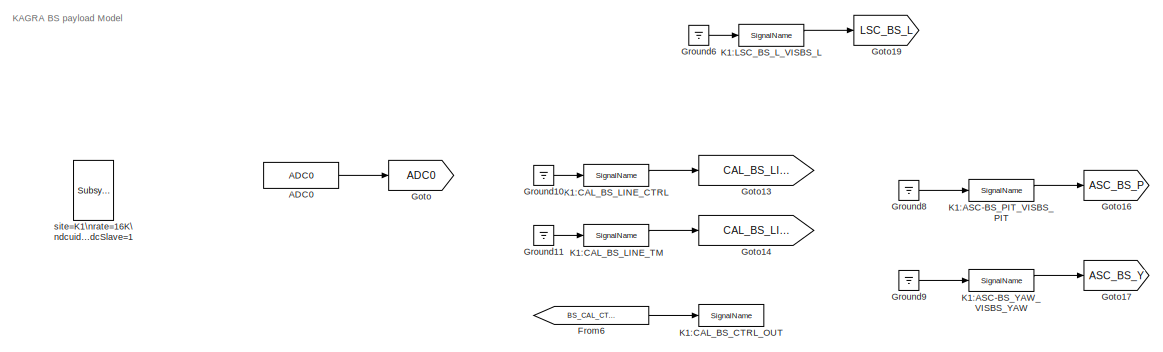
[diagram: root canvas - part 1/6, top left region]
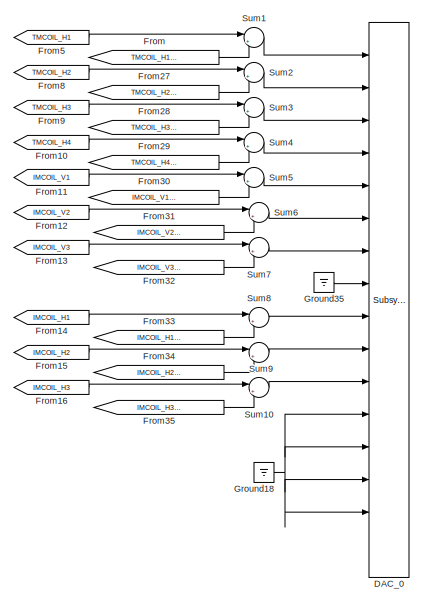
[diagram: root canvas - part 2/6, top right region]
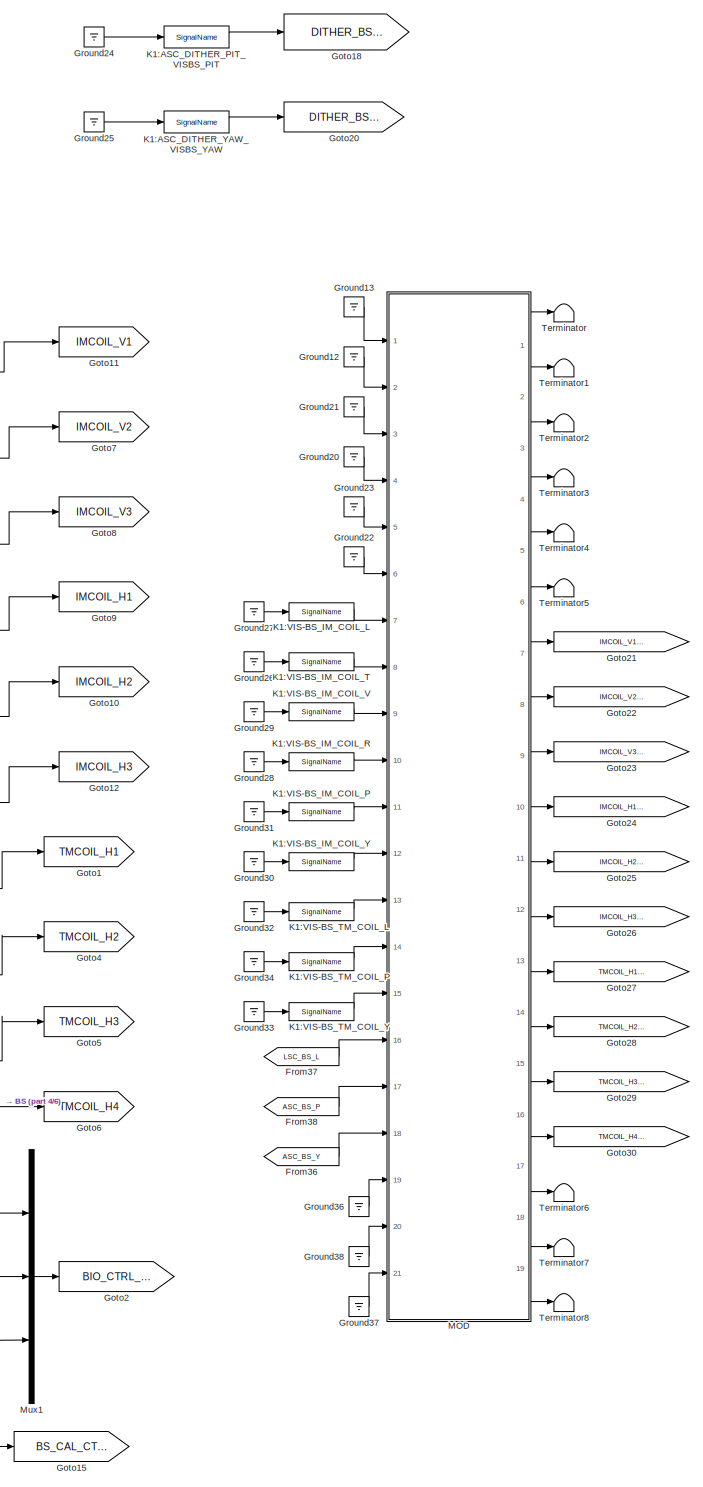
[diagram: root canvas - part 3/6, center side, full height]
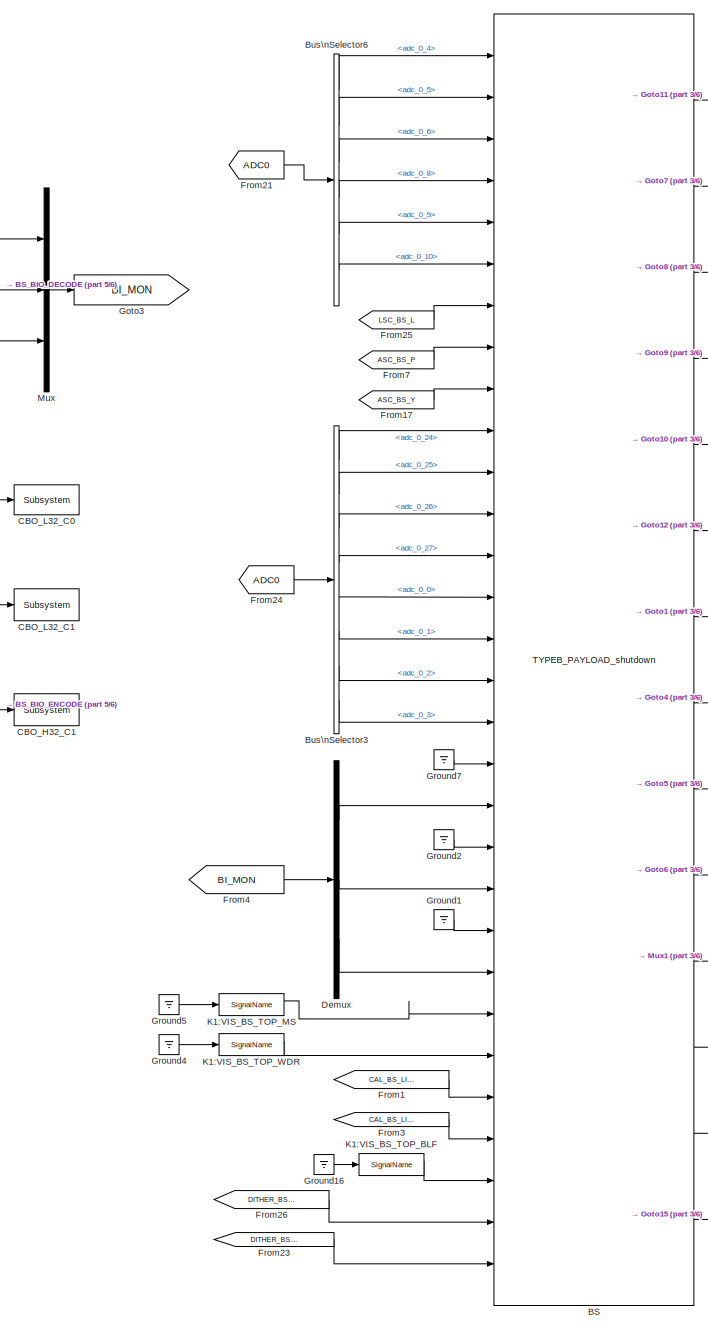
[diagram: root canvas - part 4/6, center side, full height]
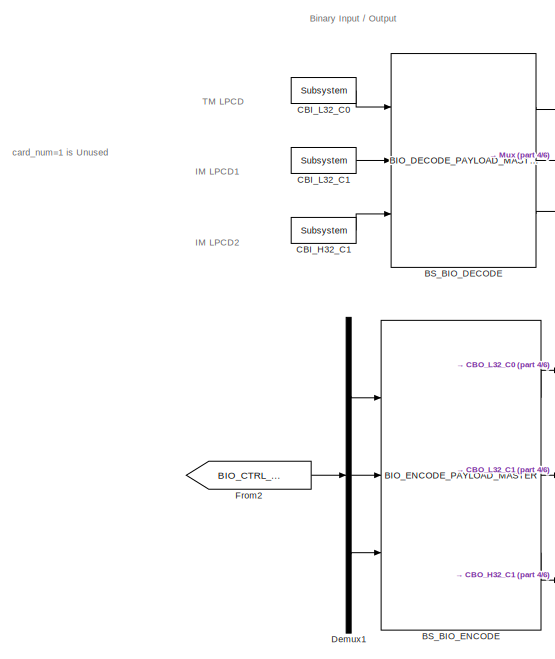
[diagram: root canvas - part 5/6, middle left region]
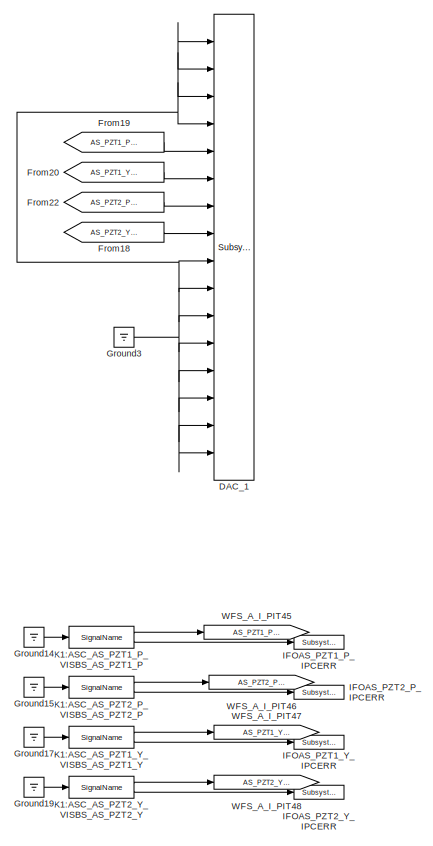
[diagram: root canvas - part 6/6, bottom right region]
MODEL k1visbsp_modal
KIND model
BLOCK [Reference] ADC0  REF=cdsAdcx0/ADC0
  AttributesFormatString = %<Description>\\n%<Tag>
  Description = type-GSC_16AI64SSA\ncard_num=0
  Ports = [0, 1]
  SID = 271
  SourceBlock = cdsAdcx0/ADC0
  SourceType = SubSystem
  Tag = cdsAdc
BLOCK [Reference] BS  REF=TYPEB_MASTER/TYPEB_PAYLOAD_shutdown
  Ports = [30, 14]
  SID = 2400
  SourceBlock = TYPEB_MASTER/TYPEB_PAYLOAD_shutdown
  SourceType = SubSystem
BLOCK [Reference] BS_BIO_DECODE  REF=TYPEB_MASTER/BIO_DECODE_PAYLOAD_MASTER
  Ports = [3, 3]
  SID = 2204
  SourceBlock = TYPEB_MASTER/BIO_DECODE_PAYLOAD_MASTER
  SourceType = SubSystem
BLOCK [Reference] BS_BIO_ENCODE  REF=TYPEB_MASTER/BIO_ENCODE_PAYLOAD_MASTER
  Ports = [3, 3]
  SID = 2205
  SourceBlock = TYPEB_MASTER/BIO_ENCODE_PAYLOAD_MASTER
  SourceType = SubSystem
BLOCK [BusSelector] Bus\nSelector3
  AttributesFormatString = %<Description>
  Description = ADC Selector
  OutputSignals = adc_0_24,adc_0_25,adc_0_26,adc_0_27,adc_0_0,adc_0_1,adc_0_2,adc_0_3
  Ports = [1, 8]
  SID = 275
BLOCK [BusSelector] Bus\nSelector6
  AttributesFormatString = %<Description>
  Description = ADC Selector
  OutputSignals = adc_0_4,adc_0_5,adc_0_6,adc_0_8,adc_0_9,adc_0_10
  Ports = [1, 6]
  SID = 273
BLOCK [Reference] CBI_H32_C1  REF=cdsCDI64/Subsystem
  AttributesFormatString = %<Tag>\\n%<Description>
  Description = card_num=3
  Ports = [0, 1]
  SID = 2125
  SourceBlock = cdsCDI64/Subsystem
  SourceType = SubSystem
  Tag = cdsCDI64
BLOCK [Reference] CBI_L32_C0  REF=cdsCDI64/Subsystem
  AttributesFormatString = %<Tag>\\n%<Description>
  Description = card_num=0
  Ports = [0, 1]
  SID = 2126
  SourceBlock = cdsCDI64/Subsystem
  SourceType = SubSystem
  Tag = cdsCDI64
BLOCK [Reference] CBI_L32_C1  REF=cdsCDI64/Subsystem
  AttributesFormatString = %<Tag>\\n%<Description>
  Description = card_num=2
  Ports = [0, 1]
  SID = 2127
  SourceBlock = cdsCDI64/Subsystem
  SourceType = SubSystem
  Tag = cdsCDI64
BLOCK [Reference] CBO_H32_C1  REF=cdsCDO64/Subsystem
  AttributesFormatString = %<Tag>\\n%<Description>
  Description = card_num=3
  Ports = [1]
  SID = 2130
  SourceBlock = cdsCDO64/Subsystem
  SourceType = SubSystem
  Tag = cdsCDO64
BLOCK [Reference] CBO_L32_C0  REF=cdsCDO64/Subsystem
  AttributesFormatString = %<Tag>\\n%<Description>
  Description = card_num=0
  Ports = [1]
  SID = 2131
  SourceBlock = cdsCDO64/Subsystem
  SourceType = SubSystem
  Tag = cdsCDO64
BLOCK [Reference] CBO_L32_C1  REF=cdsCDO64/Subsystem
  AttributesFormatString = %<Tag>\\n%<Description>
  Description = card_num=2
  Ports = [1]
  SID = 2132
  SourceBlock = cdsCDO64/Subsystem
  SourceType = SubSystem
  Tag = cdsCDO64
BLOCK [Reference] DAC_0  REF=dac/Subsystem  (lib defined in slx_40ef132df75b, slx_b7657ccccc5b, +4 more)
  AttributesFormatString = %<Description>
  Description = type=GSC_16AO16,\ncard_num=0
  Ports = [16]
  SID = 350
  SourceBlock = dac/Subsystem
  SourceType = SubSystem
BLOCK [Reference] DAC_1  REF=dac/Subsystem  (lib defined in slx_40ef132df75b, slx_b7657ccccc5b, +4 more)
  AttributesFormatString = %<Description>
  Description = type=GSC_16AO16,\ncard_num=1
  Ports = [16]
  SID = 536
  SourceBlock = dac/Subsystem
  SourceType = SubSystem
BLOCK [Demux] Demux
  DisplayOption = bar
  Outputs = 3
  Ports = [1, 3]
  SID = 2148
BLOCK [Demux] Demux1
  DisplayOption = bar
  Outputs = 3
  Ports = [1, 3]
  SID = 2135
BLOCK [From] From
  GotoTag = TMCOIL_H1_modal
  SID = 2369
BLOCK [From] From1
  GotoTag = CAL_BS_LINE_CTRL
  SID = 2173
BLOCK [From] From10
  GotoTag = TMCOIL_H4
  SID = 351
BLOCK [From] From11
  GotoTag = IMCOIL_V1
  SID = 352
BLOCK [From] From12
  GotoTag = IMCOIL_V2
  SID = 353
BLOCK [From] From13
  GotoTag = IMCOIL_V3
  SID = 354
BLOCK [From] From14
  GotoTag = IMCOIL_H1
  SID = 355
BLOCK [From] From15
  GotoTag = IMCOIL_H2
  SID = 356
BLOCK [From] From16
  GotoTag = IMCOIL_H3
  SID = 357
BLOCK [From] From17
  GotoTag = ASC_BS_Y
  SID = 2225
BLOCK [From] From18
  GotoTag = AS_PZT2_Y_DC
  SID = 2249
BLOCK [From] From19
  GotoTag = AS_PZT1_P_DC
  SID = 2250
BLOCK [From] From2
  GotoTag = BIO_CTRL_OUT
  SID = 2136
BLOCK [From] From20
  GotoTag = AS_PZT1_Y_DC
  SID = 2251
BLOCK [From] From21
  GotoTag = ADC0
  SID = 1851
BLOCK [From] From22
  GotoTag = AS_PZT2_P_DC
  SID = 2252
BLOCK [From] From23
  GotoTag = DITHER_BS_Y
  SID = 2270
BLOCK [From] From24
  GotoTag = ADC0
  SID = 1853
BLOCK [From] From25
  GotoTag = LSC_BS_L
  SID = 1862
BLOCK [From] From26
  GotoTag = DITHER_BS_P
  SID = 2271
BLOCK [From] From27
  GotoTag = TMCOIL_H2_modal
  SID = 2374
BLOCK [From] From28
  GotoTag = TMCOIL_H3_modal
  SID = 2376
BLOCK [From] From29
  GotoTag = TMCOIL_H4_modal
  SID = 2378
BLOCK [From] From3
  GotoTag = CAL_BS_LINE_TM
  SID = 2174
BLOCK [From] From30
  GotoTag = IMCOIL_V1_modal
  SID = 2380
BLOCK [From] From31
  GotoTag = IMCOIL_V2_modal
  SID = 2383
BLOCK [From] From32
  GotoTag = IMCOIL_V3_modal
  SID = 2385
BLOCK [From] From33
  GotoTag = IMCOIL_H1_modal
  SID = 2387
BLOCK [From] From34
  GotoTag = IMCOIL_H2_modal
  SID = 2389
BLOCK [From] From35
  GotoTag = IMCOIL_H3_modal
  SID = 2391
BLOCK [From] From36
  GotoTag = ASC_BS_Y
  SID = 2393
BLOCK [From] From37
  GotoTag = LSC_BS_L
  SID = 2394
BLOCK [From] From38
  GotoTag = ASC_BS_P
  SID = 2395
BLOCK [From] From4
  GotoTag = BI_MON
  SID = 2149
BLOCK [From] From5
  GotoTag = TMCOIL_H1
  SID = 359
BLOCK [From] From6
  GotoTag = BS_CAL_CTRL_OUT
  SID = 2178
BLOCK [From] From7
  GotoTag = ASC_BS_P
  SID = 2224
BLOCK [From] From8
  GotoTag = TMCOIL_H2
  SID = 360
BLOCK [From] From9
  GotoTag = TMCOIL_H3
  SID = 361
BLOCK [Goto] Goto
  GotoTag = ADC0
  SID = 272
BLOCK [Goto] Goto1
  GotoTag = TMCOIL_H1
  SID = 364
BLOCK [Goto] Goto10
  GotoTag = IMCOIL_H2
  SID = 368
BLOCK [Goto] Goto11
  GotoTag = IMCOIL_V1
  SID = 369
BLOCK [Goto] Goto12
  GotoTag = IMCOIL_H3
  SID = 370
BLOCK [Goto] Goto13
  GotoTag = CAL_BS_LINE_CTRL
  SID = 2167
BLOCK [Goto] Goto14
  GotoTag = CAL_BS_LINE_TM
  SID = 2170
BLOCK [Goto] Goto15
  GotoTag = BS_CAL_CTRL_OUT
  SID = 2177
BLOCK [Goto] Goto16
  GotoTag = ASC_BS_P
  SID = 2216
BLOCK [Goto] Goto17
  GotoTag = ASC_BS_Y
  SID = 2219
BLOCK [Goto] Goto18
  GotoTag = DITHER_BS_P
  SID = 2259
BLOCK [Goto] Goto19
  GotoTag = LSC_BS_L
  SID = 1861
BLOCK [Goto] Goto2
  GotoTag = BIO_CTRL_OUT
  SID = 2146
BLOCK [Goto] Goto20
  GotoTag = DITHER_BS_Y
  SID = 2260
BLOCK [Goto] Goto21
  GotoTag = IMCOIL_V1_modal
  SID = 2352
BLOCK [Goto] Goto22
  GotoTag = IMCOIL_V2_modal
  SID = 2354
BLOCK [Goto] Goto23
  GotoTag = IMCOIL_V3_modal
  SID = 2355
BLOCK [Goto] Goto24
  GotoTag = IMCOIL_H1_modal
  SID = 2356
BLOCK [Goto] Goto25
  GotoTag = IMCOIL_H2_modal
  SID = 2357
BLOCK [Goto] Goto26
  GotoTag = IMCOIL_H3_modal
  SID = 2358
BLOCK [Goto] Goto27
  GotoTag = TMCOIL_H1_modal
  SID = 2359
BLOCK [Goto] Goto28
  GotoTag = TMCOIL_H2_modal
  SID = 2360
BLOCK [Goto] Goto29
  GotoTag = TMCOIL_H3_modal
  SID = 2361
BLOCK [Goto] Goto3
  GotoTag = BI_MON
  SID = 2137
BLOCK [Goto] Goto30
  GotoTag = TMCOIL_H4_modal
  SID = 2362
BLOCK [Goto] Goto4
  GotoTag = TMCOIL_H2
  SID = 365
BLOCK [Goto] Goto5
  GotoTag = TMCOIL_H3
  SID = 366
BLOCK [Goto] Goto6
  GotoTag = TMCOIL_H4
  SID = 367
BLOCK [Goto] Goto7
  GotoTag = IMCOIL_V2
  SID = 371
BLOCK [Goto] Goto8
  GotoTag = IMCOIL_V3
  SID = 372
BLOCK [Goto] Goto9
  GotoTag = IMCOIL_H1
  SID = 373
BLOCK [Ground] Ground1
  SID = 2152
BLOCK [Ground] Ground10
  SID = 2168
BLOCK [Ground] Ground11
  SID = 2171
BLOCK [Ground] Ground12
  SID = 2318
BLOCK [Ground] Ground13
  SID = 2319
BLOCK [Ground] Ground14
  SID = 2233
BLOCK [Ground] Ground15
  SID = 2234
BLOCK [Ground] Ground16
  SID = 2207
BLOCK [Ground] Ground17
  SID = 2235
BLOCK [Ground] Ground18
  SID = 362
BLOCK [Ground] Ground19
  SID = 2236
BLOCK [Ground] Ground2
  SID = 2153
BLOCK [Ground] Ground20
  SID = 2321
BLOCK [Ground] Ground21
  SID = 2322
BLOCK [Ground] Ground22
  SID = 2323
BLOCK [Ground] Ground23
  SID = 2324
BLOCK [Ground] Ground24
  SID = 2266
BLOCK [Ground] Ground25
  SID = 2267
BLOCK [Ground] Ground26
  SID = 2334
BLOCK [Ground] Ground27
  SID = 2335
BLOCK [Ground] Ground28
  SID = 2336
BLOCK [Ground] Ground29
  SID = 2337
BLOCK [Ground] Ground3
  SID = 537
BLOCK [Ground] Ground30
  SID = 2338
BLOCK [Ground] Ground31
  SID = 2339
BLOCK [Ground] Ground32
  SID = 2340
BLOCK [Ground] Ground33
  SID = 2341
BLOCK [Ground] Ground34
  SID = 2342
BLOCK [Ground] Ground35
  SID = 2350
BLOCK [Ground] Ground36
  SID = 2396
BLOCK [Ground] Ground37
  SID = 2397
BLOCK [Ground] Ground38
  SID = 2398
BLOCK [Ground] Ground4
  SID = 2160
BLOCK [Ground] Ground5
  SID = 2162
BLOCK [Ground] Ground6
  SID = 1860
BLOCK [Ground] Ground7
  SID = 2151
BLOCK [Ground] Ground8
  SID = 2217
BLOCK [Ground] Ground9
  SID = 2220
BLOCK [Reference] IFOAS_PZT1_P_IPCERR  REF=cdsEpicsOut/Subsystem
  AttributesFormatString = %<Tag>
  Description = Purpose:                                          \nOutput a FE signal to an EPICS channel.           \n                                                  \nOperation:                                        \nTakes input value and passes it to EPICS record.  \n                                                  \nUsage:                                            \nName the part with the desired EPICS...<+14ch>  <repeated x4 — deduplicated; at blocks: IFOAS_PZT1_P_IPCERR, IFOAS_PZT1_Y_IPCERR, IFOAS_PZT2_P_IPCERR, IFOAS_PZT2_Y_IPCERR>
  Ports = [1, 1]
  SID = 2237
  SourceBlock = cdsEpicsOut/Subsystem
  SourceType = SubSystem
  Tag = cdsEpicsOutput
BLOCK [Reference] IFOAS_PZT1_Y_IPCERR  REF=cdsEpicsOut/Subsystem
  AttributesFormatString = %<Tag>
  Ports = [1, 1]
  SID = 2238
  SourceBlock = cdsEpicsOut/Subsystem
  SourceType = SubSystem
  Tag = cdsEpicsOutput
BLOCK [Reference] IFOAS_PZT2_P_IPCERR  REF=cdsEpicsOut/Subsystem
  AttributesFormatString = %<Tag>
  Ports = [1, 1]
  SID = 2239
  SourceBlock = cdsEpicsOut/Subsystem
  SourceType = SubSystem
  Tag = cdsEpicsOutput
BLOCK [Reference] IFOAS_PZT2_Y_IPCERR  REF=cdsEpicsOut/Subsystem
  AttributesFormatString = %<Tag>
  Ports = [1, 1]
  SID = 2240
  SourceBlock = cdsEpicsOut/Subsystem
  SourceType = SubSystem
  Tag = cdsEpicsOutput
BLOCK [Reference] K1:ASC-BS_PIT_VISBS_PIT  REF=cdsIPCx/SignalName
  AttributesFormatString = %<Tag>
  Description = Inter-Process Communication via PCI Express network.
  Ports = [1, 2]
  SID = 2230
  SourceBlock = cdsIPCx/SignalName
  SourceType = SubSystem
  Tag = cdsIPCx_PCIE
BLOCK [Reference] K1:ASC-BS_YAW_VISBS_YAW  REF=cdsIPCx/SignalName
  AttributesFormatString = %<Tag>
  Description = Inter-Process Communication via PCI Express network.
  Ports = [1, 2]
  SID = 2232
  SourceBlock = cdsIPCx/SignalName
  SourceType = SubSystem
  Tag = cdsIPCx_PCIE
BLOCK [Reference] K1:ASC_AS_PZT1_P_VISBS_AS_PZT1_P  REF=cdsIPCx/SignalName
  AttributesFormatString = %<Tag>
  Description = Inter-Process Communication via PCI Express network.
  Ports = [1, 2]
  SID = 2241
  SourceBlock = cdsIPCx/SignalName
  SourceType = SubSystem
  Tag = cdsIPCx_PCIE
BLOCK [Reference] K1:ASC_AS_PZT1_Y_VISBS_AS_PZT1_Y  REF=cdsIPCx/SignalName
  AttributesFormatString = %<Tag>
  Description = Inter-Process Communication via PCI Express network.
  Ports = [1, 2]
  SID = 2242
  SourceBlock = cdsIPCx/SignalName
  SourceType = SubSystem
  Tag = cdsIPCx_PCIE
BLOCK [Reference] K1:ASC_AS_PZT2_P_VISBS_AS_PZT2_P  REF=cdsIPCx/SignalName
  AttributesFormatString = %<Tag>
  Description = Inter-Process Communication via PCI Express network.
  Ports = [1, 2]
  SID = 2243
  SourceBlock = cdsIPCx/SignalName
  SourceType = SubSystem
  Tag = cdsIPCx_PCIE
BLOCK [Reference] K1:ASC_AS_PZT2_Y_VISBS_AS_PZT2_Y  REF=cdsIPCx/SignalName
  AttributesFormatString = %<Tag>
  Description = Inter-Process Communication via PCI Express network.
  Ports = [1, 2]
  SID = 2244
  SourceBlock = cdsIPCx/SignalName
  SourceType = SubSystem
  Tag = cdsIPCx_PCIE
BLOCK [Reference] K1:ASC_DITHER_PIT_VISBS_PIT  REF=cdsIPCx/SignalName
  AttributesFormatString = %<Tag>
  Description = Inter-Process Communication via PCI Express network.
  Ports = [1, 2]
  SID = 2226
  SourceBlock = cdsIPCx/SignalName
  SourceType = SubSystem
  Tag = cdsIPCx_PCIE
BLOCK [Reference] K1:ASC_DITHER_YAW_VISBS_YAW  REF=cdsIPCx/SignalName
  AttributesFormatString = %<Tag>
  Description = Inter-Process Communication via PCI Express network.
  Ports = [1, 2]
  SID = 2227
  SourceBlock = cdsIPCx/SignalName
  SourceType = SubSystem
  Tag = cdsIPCx_PCIE
BLOCK [Reference] K1:CAL_BS_CTRL_OUT  REF=cdsIPCx/SignalName
  AttributesFormatString = %<Tag>
  Description = Inter-Process Communication via PCI Express network.
  Ports = [1, 2]
  SID = 2176
  SourceBlock = cdsIPCx/SignalName
  SourceType = SubSystem
  Tag = cdsIPCx_PCIE
BLOCK [Reference] K1:CAL_BS_LINE_CTRL  REF=cdsIPCx/SignalName
  AttributesFormatString = %<Tag>
  Description = Inter-Process Communication via PCI Express network.
  Ports = [1, 2]
  SID = 2169
  SourceBlock = cdsIPCx/SignalName
  SourceType = SubSystem
  Tag = cdsIPCx_PCIE
BLOCK [Reference] K1:CAL_BS_LINE_TM  REF=cdsIPCx/SignalName
  AttributesFormatString = %<Tag>
  Description = Inter-Process Communication via PCI Express network.
  Ports = [1, 2]
  SID = 2172
  SourceBlock = cdsIPCx/SignalName
  SourceType = SubSystem
  Tag = cdsIPCx_PCIE
BLOCK [Reference] K1:LSC_BS_L_VISBS_L  REF=cdsIPCx/SignalName
  AttributesFormatString = %<Tag>
  Description = Inter-Process Communication via PCI Express network.
  Ports = [1, 2]
  SID = 1857
  SourceBlock = cdsIPCx/SignalName
  SourceType = SubSystem
  Tag = cdsIPCx_PCIE
BLOCK [Reference] K1:VIS-BS_IM_COIL_L  REF=cdsIPCx/SignalName
  AttributesFormatString = %<Tag>
  Description = Inter-Process Communication via Shared memory.
  Ports = [1, 2]
  SID = 2328
  SourceBlock = cdsIPCx/SignalName
  SourceType = SubSystem
  Tag = cdsIPCx_SHMEM
BLOCK [Reference] K1:VIS-BS_IM_COIL_P  REF=cdsIPCx/SignalName
  AttributesFormatString = %<Tag>
  Description = Inter-Process Communication via Shared memory.
  Ports = [1, 2]
  SID = 2326
  SourceBlock = cdsIPCx/SignalName
  SourceType = SubSystem
  Tag = cdsIPCx_SHMEM
BLOCK [Reference] K1:VIS-BS_IM_COIL_R  REF=cdsIPCx/SignalName
  AttributesFormatString = %<Tag>
  Description = Inter-Process Communication via Shared memory.
  Ports = [1, 2]
  SID = 2325
  SourceBlock = cdsIPCx/SignalName
  SourceType = SubSystem
  Tag = cdsIPCx_SHMEM
BLOCK [Reference] K1:VIS-BS_IM_COIL_T  REF=cdsIPCx/SignalName
  AttributesFormatString = %<Tag>
  Description = Inter-Process Communication via Shared memory.
  Ports = [1, 2]
  SID = 2329
  SourceBlock = cdsIPCx/SignalName
  SourceType = SubSystem
  Tag = cdsIPCx_SHMEM
BLOCK [Reference] K1:VIS-BS_IM_COIL_V  REF=cdsIPCx/SignalName
  AttributesFormatString = %<Tag>
  Description = Inter-Process Communication via Shared memory.
  Ports = [1, 2]
  SID = 2330
  SourceBlock = cdsIPCx/SignalName
  SourceType = SubSystem
  Tag = cdsIPCx_SHMEM
BLOCK [Reference] K1:VIS-BS_IM_COIL_Y  REF=cdsIPCx/SignalName
  AttributesFormatString = %<Tag>
  Description = Inter-Process Communication via Shared memory.
  Ports = [1, 2]
  SID = 2327
  SourceBlock = cdsIPCx/SignalName
  SourceType = SubSystem
  Tag = cdsIPCx_SHMEM
BLOCK [Reference] K1:VIS-BS_TM_COIL_L  REF=cdsIPCx/SignalName
  AttributesFormatString = %<Tag>
  Description = Inter-Process Communication via Shared memory.
  Ports = [1, 2]
  SID = 2331
  SourceBlock = cdsIPCx/SignalName
  SourceType = SubSystem
  Tag = cdsIPCx_SHMEM
BLOCK [Reference] K1:VIS-BS_TM_COIL_P  REF=cdsIPCx/SignalName
  AttributesFormatString = %<Tag>
  Description = Inter-Process Communication via Shared memory.
  Ports = [1, 2]
  SID = 2332
  SourceBlock = cdsIPCx/SignalName
  SourceType = SubSystem
  Tag = cdsIPCx_SHMEM
BLOCK [Reference] K1:VIS-BS_TM_COIL_Y  REF=cdsIPCx/SignalName
  AttributesFormatString = %<Tag>
  Description = Inter-Process Communication via Shared memory.
  Ports = [1, 2]
  SID = 2333
  SourceBlock = cdsIPCx/SignalName
  SourceType = SubSystem
  Tag = cdsIPCx_SHMEM
BLOCK [Reference] K1:VIS_BS_TOP_BLF  REF=cdsIPCx/SignalName
  AttributesFormatString = %<Tag>
  Description = Inter-Process Communication via Shared memory.
  Ports = [1, 2]
  SID = 2208
  SourceBlock = cdsIPCx/SignalName
  SourceType = SubSystem
  Tag = cdsIPCx_SHMEM
BLOCK [Reference] K1:VIS_BS_TOP_MS  REF=cdsIPCx/SignalName
  AttributesFormatString = %<Tag>
  Description = Inter-Process Communication via Shared memory.
  Ports = [1, 2]
  SID = 2163
  SourceBlock = cdsIPCx/SignalName
  SourceType = SubSystem
  Tag = cdsIPCx_SHMEM
BLOCK [Reference] K1:VIS_BS_TOP_WDR  REF=cdsIPCx/SignalName
  AttributesFormatString = %<Tag>
  Description = Inter-Process Communication via Shared memory.
  Ports = [1, 2]
  SID = 2161
  SourceBlock = cdsIPCx/SignalName
  SourceType = SubSystem
  Tag = cdsIPCx_SHMEM
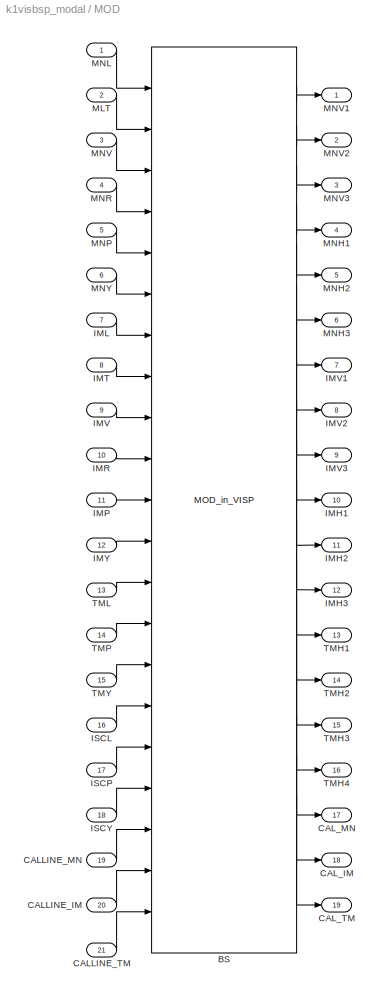
BLOCK [SubSystem] MOD
  Ports = [21, 19]
  RequestExecContextInheritance = off
  SID = 2276
  Tag = top_names
  Variant = off
BLOCK [Reference] MOD/BS  REF=VIS_LIB/MODAL/MOD_in_VISP
  Ports = [21, 22]
  SID = 2298
  SourceBlock = VIS_LIB/MODAL/MOD_in_VISP
  SourceType = SubSystem
  Tag = top_names
BLOCK [Inport] MOD/CALLINE_IM
  IconDisplay = Port number
  Port = 20
  SID = 2296
BLOCK [Inport] MOD/CALLINE_MN
  IconDisplay = Port number
  Port = 19
  SID = 2295
BLOCK [Inport] MOD/CALLINE_TM
  IconDisplay = Port number
  Port = 21
  SID = 2297
BLOCK [Outport] MOD/CAL_IM
  IconDisplay = Port number
  Port = 18
  SID = 2316
BLOCK [Outport] MOD/CAL_MN
  IconDisplay = Port number
  Port = 17
  SID = 2315
BLOCK [Outport] MOD/CAL_TM
  IconDisplay = Port number
  Port = 19
  SID = 2317
BLOCK [Outport] MOD/IMH1
  IconDisplay = Port number
  Port = 10
  SID = 2308
BLOCK [Outport] MOD/IMH2
  IconDisplay = Port number
  Port = 11
  SID = 2309
BLOCK [Outport] MOD/IMH3
  IconDisplay = Port number
  Port = 12
  SID = 2310
BLOCK [Inport] MOD/IML
  IconDisplay = Port number
  Port = 7
  SID = 2283
BLOCK [Inport] MOD/IMP
  IconDisplay = Port number
  Port = 11
  SID = 2287
BLOCK [Inport] MOD/IMR
  IconDisplay = Port number
  Port = 10
  SID = 2286
BLOCK [Inport] MOD/IMT
  IconDisplay = Port number
  Port = 8
  SID = 2284
BLOCK [Inport] MOD/IMV
  IconDisplay = Port number
  Port = 9
  SID = 2285
BLOCK [Outport] MOD/IMV1
  IconDisplay = Port number
  Port = 7
  SID = 2305
BLOCK [Outport] MOD/IMV2
  IconDisplay = Port number
  Port = 8
  SID = 2306
BLOCK [Outport] MOD/IMV3
  IconDisplay = Port number
  Port = 9
  SID = 2307
BLOCK [Inport] MOD/IMY
  IconDisplay = Port number
  Port = 12
  SID = 2288
BLOCK [Inport] MOD/ISCL
  IconDisplay = Port number
  Port = 16
  SID = 2292
BLOCK [Inport] MOD/ISCP
  IconDisplay = Port number
  Port = 17
  SID = 2293
BLOCK [Inport] MOD/ISCY
  IconDisplay = Port number
  Port = 18
  SID = 2294
BLOCK [Inport] MOD/MLT
  IconDisplay = Port number
  Port = 2
  SID = 2278
BLOCK [Outport] MOD/MNH1
  IconDisplay = Port number
  Port = 4
  SID = 2302
BLOCK [Outport] MOD/MNH2
  IconDisplay = Port number
  Port = 5
  SID = 2303
BLOCK [Outport] MOD/MNH3
  IconDisplay = Port number
  Port = 6
  SID = 2304
BLOCK [Inport] MOD/MNL
  IconDisplay = Port number
  SID = 2277
BLOCK [Inport] MOD/MNP
  IconDisplay = Port number
  Port = 5
  SID = 2281
BLOCK [Inport] MOD/MNR
  IconDisplay = Port number
  Port = 4
  SID = 2280
BLOCK [Inport] MOD/MNV
  IconDisplay = Port number
  Port = 3
  SID = 2279
BLOCK [Outport] MOD/MNV1
  IconDisplay = Port number
  SID = 2299
BLOCK [Outport] MOD/MNV2
  IconDisplay = Port number
  Port = 2
  SID = 2300
BLOCK [Outport] MOD/MNV3
  IconDisplay = Port number
  Port = 3
  SID = 2301
BLOCK [Inport] MOD/MNY
  IconDisplay = Port number
  Port = 6
  SID = 2282
BLOCK [Outport] MOD/TMH1
  IconDisplay = Port number
  Port = 13
  SID = 2311
BLOCK [Outport] MOD/TMH2
  IconDisplay = Port number
  Port = 14
  SID = 2312
BLOCK [Outport] MOD/TMH3
  IconDisplay = Port number
  Port = 15
  SID = 2313
BLOCK [Outport] MOD/TMH4
  IconDisplay = Port number
  Port = 16
  SID = 2314
BLOCK [Inport] MOD/TML
  IconDisplay = Port number
  Port = 13
  SID = 2289
BLOCK [Inport] MOD/TMP
  IconDisplay = Port number
  Port = 14
  SID = 2290
BLOCK [Inport] MOD/TMY
  IconDisplay = Port number
  Port = 15
  SID = 2291
BLOCK [Mux] Mux
  DisplayOption = bar
  Inputs = 3
  Ports = [3, 1]
  SID = 2138
BLOCK [Mux] Mux1
  DisplayOption = bar
  Inputs = 3
  Ports = [3, 1]
  SID = 2147
BLOCK [Sum] Sum1
  IconShape = round
  InputSameDT = off
  Inputs = |++
  OutDataTypeStr = Inherit: Inherit via internal rule
  Ports = [2, 1]
  SID = 2371
  SaturateOnIntegerOverflow = off
BLOCK [Sum] Sum10
  IconShape = round
  InputSameDT = off
  Inputs = |++
  OutDataTypeStr = Inherit: Inherit via internal rule
  Ports = [2, 1]
  SID = 2392
  SaturateOnIntegerOverflow = off
BLOCK [Sum] Sum2
  IconShape = round
  InputSameDT = off
  Inputs = |++
  OutDataTypeStr = Inherit: Inherit via internal rule
  Ports = [2, 1]
  SID = 2375
  SaturateOnIntegerOverflow = off
BLOCK [Sum] Sum3
  IconShape = round
  InputSameDT = off
  Inputs = |++
  OutDataTypeStr = Inherit: Inherit via internal rule
  Ports = [2, 1]
  SID = 2377
  SaturateOnIntegerOverflow = off
BLOCK [Sum] Sum4
  IconShape = round
  InputSameDT = off
  Inputs = |++
  OutDataTypeStr = Inherit: Inherit via internal rule
  Ports = [2, 1]
  SID = 2379
  SaturateOnIntegerOverflow = off
BLOCK [Sum] Sum5
  IconShape = round
  InputSameDT = off
  Inputs = |++
  OutDataTypeStr = Inherit: Inherit via internal rule
  Ports = [2, 1]
  SID = 2381
  SaturateOnIntegerOverflow = off
BLOCK [Sum] Sum6
  IconShape = round
  InputSameDT = off
  Inputs = |++
  OutDataTypeStr = Inherit: Inherit via internal rule
  Ports = [2, 1]
  SID = 2384
  SaturateOnIntegerOverflow = off
BLOCK [Sum] Sum7
  IconShape = round
  InputSameDT = off
  Inputs = |++
  OutDataTypeStr = Inherit: Inherit via internal rule
  Ports = [2, 1]
  SID = 2386
  SaturateOnIntegerOverflow = off
BLOCK [Sum] Sum8
  IconShape = round
  InputSameDT = off
  Inputs = |++
  OutDataTypeStr = Inherit: Inherit via internal rule
  Ports = [2, 1]
  SID = 2388
  SaturateOnIntegerOverflow = off
BLOCK [Sum] Sum9
  IconShape = round
  InputSameDT = off
  Inputs = |++
  OutDataTypeStr = Inherit: Inherit via internal rule
  Ports = [2, 1]
  SID = 2390
  SaturateOnIntegerOverflow = off
BLOCK [Terminator] Terminator
  SID = 2343
BLOCK [Terminator] Terminator1
  SID = 2344
BLOCK [Terminator] Terminator2
  SID = 2345
BLOCK [Terminator] Terminator3
  SID = 2346
BLOCK [Terminator] Terminator4
  SID = 2347
BLOCK [Terminator] Terminator5
  SID = 2348
BLOCK [Terminator] Terminator6
  SID = 2363
BLOCK [Terminator] Terminator7
  SID = 2364
BLOCK [Terminator] Terminator8
  SID = 2365
BLOCK [Goto] WFS_A_I_PIT45
  GotoTag = AS_PZT1_P_DC
  SID = 2245
BLOCK [Goto] WFS_A_I_PIT46
  GotoTag = AS_PZT2_P_DC
  SID = 2246
BLOCK [Goto] WFS_A_I_PIT47
  GotoTag = AS_PZT1_Y_DC
  SID = 2247
BLOCK [Goto] WFS_A_I_PIT48
  GotoTag = AS_PZT2_Y_DC
  SID = 2248
BLOCK [Reference] site=K1\nrate=16K\ndcuid=92\nhost=k1bs\nspecific_cpu=5\nadcSlave=1  REF=cdsParameters/Subsystem
  AttributesFormatString = %<Tag>
  Description = Purpose:                                                                                                                                                                                                                                \nProvide system parameters to the FE code generator to properly configure the generated EPICS names, rep rate of the FE controller, and the Data Acquisition node ID fo...<+2934ch>
  Ports = []
  SID = 422
  SourceBlock = cdsParameters/Subsystem
  SourceType = SubSystem
  Tag = cdsParameters
ANNOTATION (root): \n \n TM LPCD
ANNOTATION (root): \n \n card_num=1 is Unused
ANNOTATION (root): \n \n IM LPCD1
ANNOTATION (root): \n \n IM LPCD2
ANNOTATION (root): \n \n KAGRA BS payload Model
ANNOTATION (root): Binary Input / Output
LINE ADC0:1 -> Goto:1
LINE BS:1 -> Goto11:1
LINE BS:10 -> Goto6:1
LINE BS:11 -> Mux1:1
LINE BS:12 -> Mux1:2
LINE BS:13 -> Mux1:3
LINE BS:14 -> Goto15:1
LINE BS:2 -> Goto7:1
LINE BS:3 -> Goto8:1
LINE BS:4 -> Goto9:1
LINE BS:5 -> Goto10:1
LINE BS:6 -> Goto12:1
LINE BS:7 -> Goto1:1
LINE BS:8 -> Goto4:1
LINE BS:9 -> Goto5:1
LINE BS_BIO_DECODE:1 -> Mux:1
LINE BS_BIO_DECODE:2 -> Mux:2
LINE BS_BIO_DECODE:3 -> Mux:3
LINE BS_BIO_ENCODE:1 -> CBO_L32_C0:1
LINE BS_BIO_ENCODE:2 -> CBO_L32_C1:1
LINE BS_BIO_ENCODE:3 -> CBO_H32_C1:1
LINE Bus\nSelector3:1 -> BS:10
LINE Bus\nSelector3:2 -> BS:11
LINE Bus\nSelector3:3 -> BS:12
LINE Bus\nSelector3:4 -> BS:13
LINE Bus\nSelector3:5 -> BS:14
LINE Bus\nSelector3:6 -> BS:15
LINE Bus\nSelector3:7 -> BS:16
LINE Bus\nSelector3:8 -> BS:17
LINE Bus\nSelector6:1 -> BS:1
LINE Bus\nSelector6:2 -> BS:2
LINE Bus\nSelector6:3 -> BS:3
LINE Bus\nSelector6:4 -> BS:4
LINE Bus\nSelector6:5 -> BS:5
LINE Bus\nSelector6:6 -> BS:6
LINE CBI_H32_C1:1 -> BS_BIO_DECODE:3
LINE CBI_L32_C0:1 -> BS_BIO_DECODE:1
LINE CBI_L32_C1:1 -> BS_BIO_DECODE:2
LINE Demux1:1 -> BS_BIO_ENCODE:1
LINE Demux1:2 -> BS_BIO_ENCODE:2
LINE Demux1:3 -> BS_BIO_ENCODE:3
LINE Demux:1 -> BS:19
LINE Demux:2 -> BS:21
LINE Demux:3 -> BS:23
LINE From10:1 -> Sum4:1
LINE From11:1 -> Sum5:1
LINE From12:1 -> Sum6:1
LINE From13:1 -> Sum7:1
LINE From14:1 -> Sum8:1
LINE From15:1 -> Sum9:1
LINE From16:1 -> Sum10:1
LINE From17:1 -> BS:9
LINE From18:1 -> DAC_1:8
LINE From19:1 -> DAC_1:5
LINE From1:1 -> BS:26
LINE From20:1 -> DAC_1:6
LINE From21:1 -> Bus\nSelector6:1
LINE From22:1 -> DAC_1:7
LINE From23:1 -> BS:30
LINE From24:1 -> Bus\nSelector3:1
LINE From25:1 -> BS:7
LINE From26:1 -> BS:29
LINE From27:1 -> Sum2:2
LINE From28:1 -> Sum3:2
LINE From29:1 -> Sum4:2
LINE From2:1 -> Demux1:1
LINE From30:1 -> Sum5:2
LINE From31:1 -> Sum6:2
LINE From32:1 -> Sum7:2
LINE From33:1 -> Sum8:2
LINE From34:1 -> Sum9:2
LINE From35:1 -> Sum10:2
LINE From36:1 -> MOD:18
LINE From37:1 -> MOD:16
LINE From38:1 -> MOD:17
LINE From3:1 -> BS:27
LINE From4:1 -> Demux:1
LINE From5:1 -> Sum1:1
LINE From6:1 -> K1:CAL_BS_CTRL_OUT:1
LINE From7:1 -> BS:8
LINE From8:1 -> Sum2:1
LINE From9:1 -> Sum3:1
LINE From:1 -> Sum1:2
LINE Ground10:1 -> K1:CAL_BS_LINE_CTRL:1
LINE Ground11:1 -> K1:CAL_BS_LINE_TM:1
LINE Ground12:1 -> MOD:2
LINE Ground13:1 -> MOD:1
LINE Ground14:1 -> K1:ASC_AS_PZT1_P_VISBS_AS_PZT1_P:1
LINE Ground15:1 -> K1:ASC_AS_PZT2_P_VISBS_AS_PZT2_P:1
LINE Ground16:1 -> K1:VIS_BS_TOP_BLF:1
LINE Ground17:1 -> K1:ASC_AS_PZT1_Y_VISBS_AS_PZT1_Y:1
NET Ground18:1 -> DAC_0:12, DAC_0:13, DAC_0:14, DAC_0:15
LINE Ground19:1 -> K1:ASC_AS_PZT2_Y_VISBS_AS_PZT2_Y:1
LINE Ground1:1 -> BS:22
LINE Ground20:1 -> MOD:4
LINE Ground21:1 -> MOD:3
LINE Ground22:1 -> MOD:6
LINE Ground23:1 -> MOD:5
LINE Ground24:1 -> K1:ASC_DITHER_PIT_VISBS_PIT:1
LINE Ground25:1 -> K1:ASC_DITHER_YAW_VISBS_YAW:1
LINE Ground26:1 -> K1:VIS-BS_IM_COIL_T:1
LINE Ground27:1 -> K1:VIS-BS_IM_COIL_L:1
LINE Ground28:1 -> K1:VIS-BS_IM_COIL_R:1
LINE Ground29:1 -> K1:VIS-BS_IM_COIL_V:1
LINE Ground2:1 -> BS:20
LINE Ground30:1 -> K1:VIS-BS_IM_COIL_Y:1
LINE Ground31:1 -> K1:VIS-BS_IM_COIL_P:1
LINE Ground32:1 -> K1:VIS-BS_TM_COIL_L:1
LINE Ground33:1 -> K1:VIS-BS_TM_COIL_Y:1
LINE Ground34:1 -> K1:VIS-BS_TM_COIL_P:1
LINE Ground35:1 -> DAC_0:8
LINE Ground36:1 -> MOD:19
LINE Ground37:1 -> MOD:21
LINE Ground38:1 -> MOD:20
NET Ground3:1 -> DAC_1:1, DAC_1:10, DAC_1:11, DAC_1:12, DAC_1:13, DAC_1:14, DAC_1:15, DAC_1:16, DAC_1:2, DAC_1:3, DAC_1:4, DAC_1:9
LINE Ground4:1 -> K1:VIS_BS_TOP_WDR:1
LINE Ground5:1 -> K1:VIS_BS_TOP_MS:1
LINE Ground6:1 -> K1:LSC_BS_L_VISBS_L:1
LINE Ground7:1 -> BS:18
LINE Ground8:1 -> K1:ASC-BS_PIT_VISBS_PIT:1
LINE Ground9:1 -> K1:ASC-BS_YAW_VISBS_YAW:1
LINE K1:ASC-BS_PIT_VISBS_PIT:1 -> Goto16:1
LINE K1:ASC-BS_YAW_VISBS_YAW:1 -> Goto17:1
LINE K1:ASC_AS_PZT1_P_VISBS_AS_PZT1_P:1 -> WFS_A_I_PIT45:1
LINE K1:ASC_AS_PZT1_P_VISBS_AS_PZT1_P:2 -> IFOAS_PZT1_P_IPCERR:1
LINE K1:ASC_AS_PZT1_Y_VISBS_AS_PZT1_Y:1 -> WFS_A_I_PIT47:1
LINE K1:ASC_AS_PZT1_Y_VISBS_AS_PZT1_Y:2 -> IFOAS_PZT1_Y_IPCERR:1
LINE K1:ASC_AS_PZT2_P_VISBS_AS_PZT2_P:1 -> WFS_A_I_PIT46:1
LINE K1:ASC_AS_PZT2_P_VISBS_AS_PZT2_P:2 -> IFOAS_PZT2_P_IPCERR:1
LINE K1:ASC_AS_PZT2_Y_VISBS_AS_PZT2_Y:1 -> WFS_A_I_PIT48:1
LINE K1:ASC_AS_PZT2_Y_VISBS_AS_PZT2_Y:2 -> IFOAS_PZT2_Y_IPCERR:1
LINE K1:ASC_DITHER_PIT_VISBS_PIT:1 -> Goto18:1
LINE K1:ASC_DITHER_YAW_VISBS_YAW:1 -> Goto20:1
LINE K1:CAL_BS_LINE_CTRL:1 -> Goto13:1
LINE K1:CAL_BS_LINE_TM:1 -> Goto14:1
LINE K1:LSC_BS_L_VISBS_L:1 -> Goto19:1
LINE K1:VIS-BS_IM_COIL_L:1 -> MOD:7
LINE K1:VIS-BS_IM_COIL_P:1 -> MOD:11
LINE K1:VIS-BS_IM_COIL_R:1 -> MOD:10
LINE K1:VIS-BS_IM_COIL_T:1 -> MOD:8
LINE K1:VIS-BS_IM_COIL_V:1 -> MOD:9
LINE K1:VIS-BS_IM_COIL_Y:1 -> MOD:12
LINE K1:VIS-BS_TM_COIL_L:1 -> MOD:13
LINE K1:VIS-BS_TM_COIL_P:1 -> MOD:14
LINE K1:VIS-BS_TM_COIL_Y:1 -> MOD:15
LINE K1:VIS_BS_TOP_BLF:1 -> BS:28
LINE K1:VIS_BS_TOP_MS:1 -> BS:24
LINE K1:VIS_BS_TOP_WDR:1 -> BS:25
LINE MOD/BS:1 -> MOD/MNV1:1
LINE MOD/BS:10 -> MOD/IMH1:1
LINE MOD/BS:11 -> MOD/IMH2:1
LINE MOD/BS:12 -> MOD/IMH3:1
LINE MOD/BS:13 -> MOD/TMH1:1
LINE MOD/BS:14 -> MOD/TMH2:1
LINE MOD/BS:15 -> MOD/TMH3:1
LINE MOD/BS:16 -> MOD/TMH4:1
LINE MOD/BS:17 -> MOD/CAL_MN:1
LINE MOD/BS:18 -> MOD/CAL_IM:1
LINE MOD/BS:19 -> MOD/CAL_TM:1
LINE MOD/BS:2 -> MOD/MNV2:1
LINE MOD/BS:3 -> MOD/MNV3:1
LINE MOD/BS:4 -> MOD/MNH1:1
LINE MOD/BS:5 -> MOD/MNH2:1
LINE MOD/BS:6 -> MOD/MNH3:1
LINE MOD/BS:7 -> MOD/IMV1:1
LINE MOD/BS:8 -> MOD/IMV2:1
LINE MOD/BS:9 -> MOD/IMV3:1
LINE MOD/CALLINE_IM:1 -> MOD/BS:20
LINE MOD/CALLINE_MN:1 -> MOD/BS:19
LINE MOD/CALLINE_TM:1 -> MOD/BS:21
LINE MOD/IML:1 -> MOD/BS:7
LINE MOD/IMP:1 -> MOD/BS:11
LINE MOD/IMR:1 -> MOD/BS:10
LINE MOD/IMT:1 -> MOD/BS:8
LINE MOD/IMV:1 -> MOD/BS:9
LINE MOD/IMY:1 -> MOD/BS:12
LINE MOD/ISCL:1 -> MOD/BS:16
LINE MOD/ISCP:1 -> MOD/BS:17
LINE MOD/ISCY:1 -> MOD/BS:18
LINE MOD/MLT:1 -> MOD/BS:2
LINE MOD/MNL:1 -> MOD/BS:1
LINE MOD/MNP:1 -> MOD/BS:5
LINE MOD/MNR:1 -> MOD/BS:4
LINE MOD/MNV:1 -> MOD/BS:3
LINE MOD/MNY:1 -> MOD/BS:6
LINE MOD/TML:1 -> MOD/BS:13
LINE MOD/TMP:1 -> MOD/BS:14
LINE MOD/TMY:1 -> MOD/BS:15
LINE MOD:1 -> Terminator:1
LINE MOD:10 -> Goto24:1
LINE MOD:11 -> Goto25:1
LINE MOD:12 -> Goto26:1
LINE MOD:13 -> Goto27:1
LINE MOD:14 -> Goto28:1
LINE MOD:15 -> Goto29:1
LINE MOD:16 -> Goto30:1
LINE MOD:17 -> Terminator6:1
LINE MOD:18 -> Terminator7:1
LINE MOD:19 -> Terminator8:1
LINE MOD:2 -> Terminator1:1
LINE MOD:3 -> Terminator2:1
LINE MOD:4 -> Terminator3:1
LINE MOD:5 -> Terminator4:1
LINE MOD:6 -> Terminator5:1
LINE MOD:7 -> Goto21:1
LINE MOD:8 -> Goto22:1
LINE MOD:9 -> Goto23:1
LINE Mux1:1 -> Goto2:1
LINE Mux:1 -> Goto3:1
LINE Sum10:1 -> DAC_0:11
LINE Sum1:1 -> DAC_0:1
LINE Sum2:1 -> DAC_0:2
LINE Sum3:1 -> DAC_0:3
LINE Sum4:1 -> DAC_0:4
LINE Sum5:1 -> DAC_0:5
LINE Sum6:1 -> DAC_0:6
LINE Sum7:1 -> DAC_0:7
LINE Sum8:1 -> DAC_0:9
LINE Sum9:1 -> DAC_0:10
note: NET lines group one-source signal fan-out (src -> all destinations, sorted); 1:1 wires keep LINE
